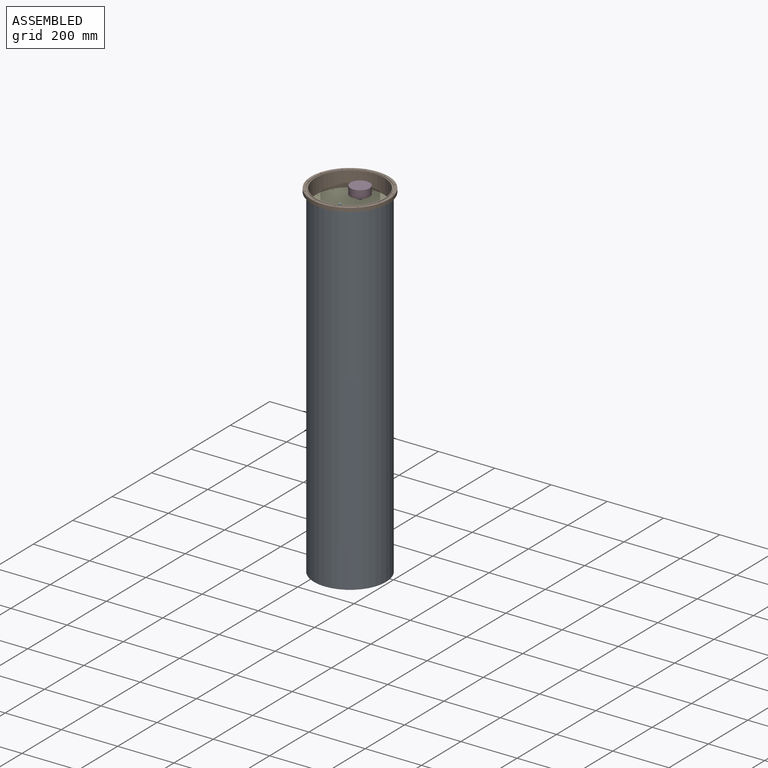
[diagram: assembled view]
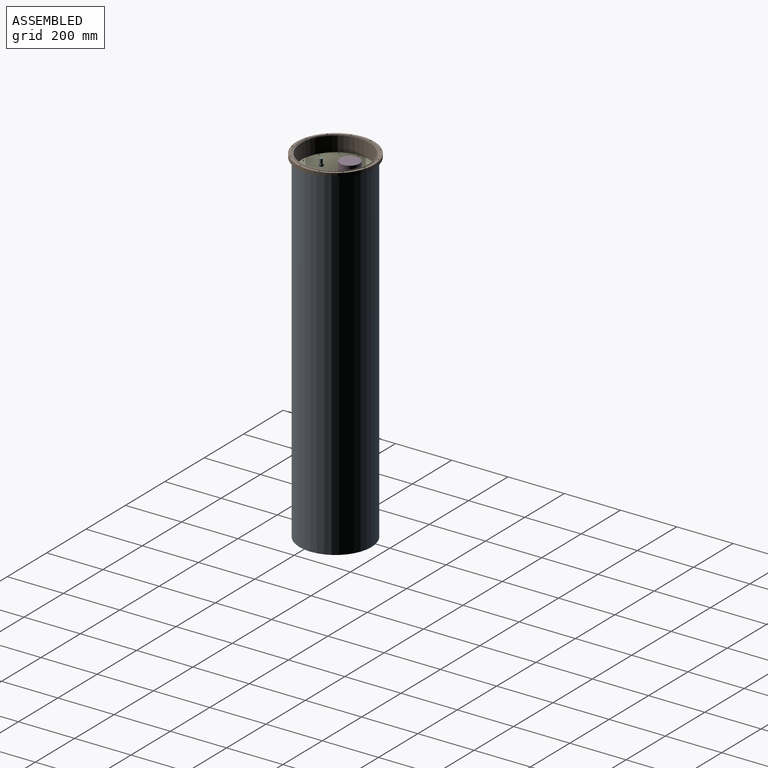
[diagram: assembled view, second angle]
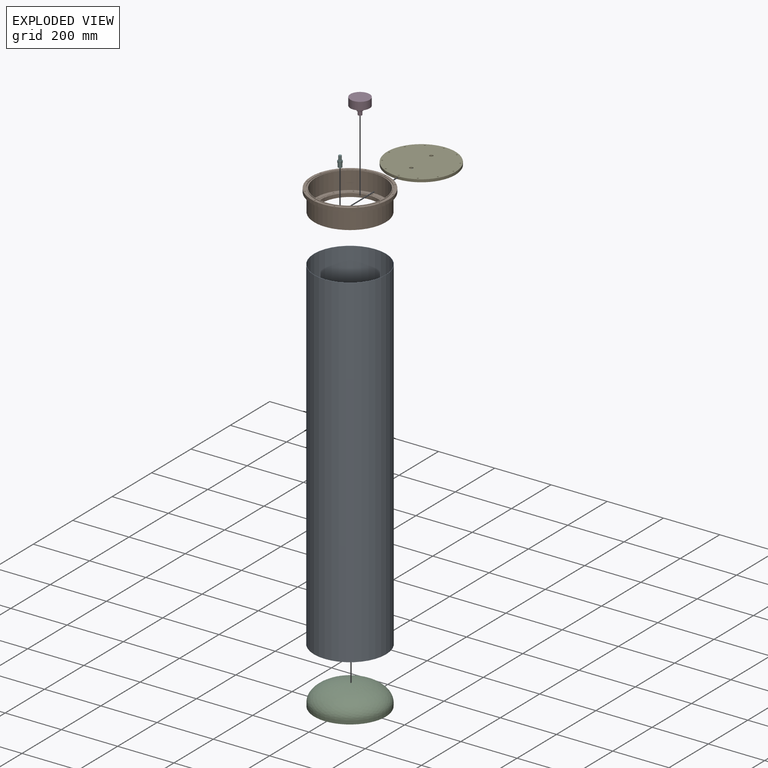
[diagram: exploded view]
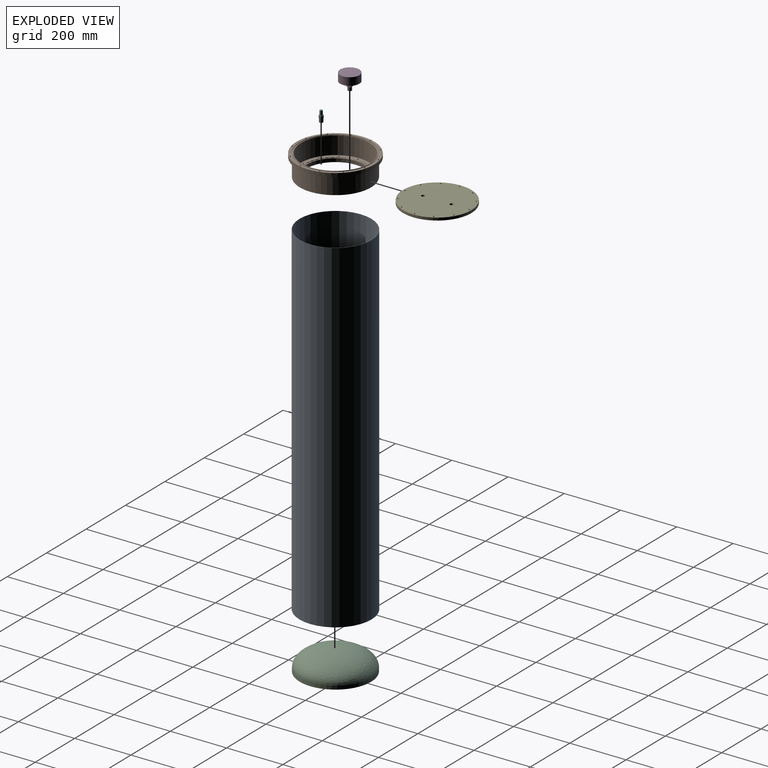
[diagram: exploded view, second angle]
ASSEMBLY  parts=6 mates=5
PART A: 4 faces, bbox 256x256x1219.2 mm
  f0: cylinder r=127mm len=1219.2mm, axis (0,0,-1), area 972878.4mm2, adj f2,f3
  f1: cylinder r=127.99mm len=1219.2mm, axis (0,0,-1), area 980466.8mm2, adj f2,f3
  f2: plane 255.98x255.98mm, normal (0,0,1), area 793.5mm2, adj f0,f1
  f3: plane 255.98x255.98mm, normal (0,0,-1), area 793.5mm2, adj f0,f1
PART B: 54 faces, bbox 276.2x276.2x76.2 mm
  f0: plane 217.17x217.17mm, normal (0,0,1), area 546mm2, adj f1,f17
  f1: torus R=106.68mm, axis (0,0,-1), area 5053.6mm2, adj f0,f2
  f2: plane 211.16x211.16mm, normal (0,0,1), area 530.9mm2, adj f1,f3
  f3: cylinder r=104.77mm len=209.55mm, axis (0,0,-1), area 1504.9mm2, adj f2,f4
  f4: plane 209.55x209.55mm, normal (0,0,1), area 2058.5mm2, adj f3,f5
  f5: cylinder r=101.6mm len=203.2mm, axis (0,0,-1), area 8107.3mm2, adj f4,f6
  f6: plane 254x254mm, normal (0,0,-1), area 18241.5mm2, adj f5,f7
  f7: cylinder r=127mm len=254mm, axis (0,0,-1), area 50670.7mm2, adj f6,f8
  f8: plane 276.23x276.23mm, normal (0,0,-1), area 9041.6mm2, adj f7,f9,f42,f43,f44,f45,f46,f47
  f9: cylinder r=138.11mm len=276.23mm, axis (0,0,-1), area 11020.9mm2, adj f8,f10
  f10: plane 276.23x276.23mm, normal (0,0,1), area 7971.9mm2, adj f9,f11,f42,f43,f44,f45,f46,f47
  f11: cylinder r=128.33mm len=256.67mm, axis (0,0,-1), area 1843.3mm2, adj f10,f12
  f12: plane 256.67x256.67mm, normal (0,0,1), area 3026.6mm2, adj f11,f13
  f13: cylinder r=124.52mm len=249.05mm, axis (0,0,-1), area 1788.6mm2, adj f12,f14
  f14: plane 249.05x249.05mm, normal (0,0,1), area 1772.2mm2, adj f13,f15
  f15: cylinder r=122.24mm len=244.48mm, axis (0,0,-1), area 48770.6mm2, adj f14,f16
  f16: plane 244.48x244.48mm, normal (0,0,1), area 9697mm2, adj f15,f17,f18,f20,f22,f24,f26,f28
  f17: cylinder r=108.59mm len=217.17mm, axis (0,0,-1), area 1559.6mm2, adj f0,f16
  f18: cylinder r=2.32mm len=9.53mm, axis (0,0,1), area 138.9mm2, adj f16,f19
  f19: plane 4.64x4.64mm, normal (0,0,1), area 16.9mm2, adj f18
  f20: cylinder r=2.32mm len=9.53mm, axis (0,0,1), area 138.9mm2, adj f16,f21
  f21: plane 4.64x4.64mm, normal (0,0,1), area 16.9mm2, adj f20
  f22: cylinder r=2.32mm len=9.53mm, axis (0,0,1), area 138.9mm2, adj f16,f23
  f23: plane 4.64x4.64mm, normal (0,0,1), area 16.9mm2, adj f22
  f24: cylinder r=2.32mm len=9.53mm, axis (0,0,1), area 138.9mm2, adj f16,f25
  f25: plane 4.64x4.64mm, normal (0,0,1), area 16.9mm2, adj f24
  f26: cylinder r=2.32mm len=9.53mm, axis (0,0,1), area 138.9mm2, adj f16,f27
  f27: plane 4.64x4.64mm, normal (0,0,1), area 16.9mm2, adj f26
  f28: cylinder r=2.32mm len=9.53mm, axis (0,0,1), area 138.9mm2, adj f16,f29
  f29: plane 4.64x4.64mm, normal (0,0,1), area 16.9mm2, adj f28
  f30: cylinder r=2.32mm len=9.53mm, axis (0,0,1), area 138.9mm2, adj f16,f31
  f31: plane 4.64x4.64mm, normal (0,0,1), area 16.9mm2, adj f30
  f32: cylinder r=2.32mm len=9.53mm, axis (0,0,1), area 138.9mm2, adj f16,f33
  f33: plane 4.64x4.64mm, normal (0,0,1), area 16.9mm2, adj f32
  f34: cylinder r=2.32mm len=9.53mm, axis (0,0,1), area 138.9mm2, adj f16,f35
  f35: plane 4.64x4.64mm, normal (0,0,1), area 16.9mm2, adj f34
  f36: cylinder r=2.32mm len=9.53mm, axis (0,0,1), area 138.9mm2, adj f16,f37
  f37: plane 4.64x4.64mm, normal (0,0,1), area 16.9mm2, adj f36
  f38: cylinder r=2.32mm len=9.53mm, axis (0,0,1), area 138.9mm2, adj f16,f39
  f39: plane 4.64x4.64mm, normal (0,0,1), area 16.9mm2, adj f38
  f40: cylinder r=2.32mm len=9.53mm, axis (0,0,1), area 138.9mm2, adj f16,f41
  f41: plane 4.64x4.64mm, normal (0,0,1), area 16.9mm2, adj f40
  f42: cylinder r=2.38mm len=12.7mm, axis (0,0,1), area 190mm2, adj f8,f10
  f43: cylinder r=2.38mm len=12.7mm, axis (0,0,1), area 190mm2, adj f8,f10
  f44: cylinder r=2.38mm len=12.7mm, axis (0,0,1), area 190mm2, adj f8,f10
  f45: cylinder r=2.38mm len=12.7mm, axis (0,0,1), area 190mm2, adj f8,f10
  f46: cylinder r=2.38mm len=12.7mm, axis (0,0,1), area 190mm2, adj f8,f10
  f47: cylinder r=2.38mm len=12.7mm, axis (0,0,1), area 190mm2, adj f8,f10
  f48: cylinder r=2.38mm len=12.7mm, axis (0,0,1), area 190mm2, adj f8,f10
  f49: cylinder r=2.38mm len=12.7mm, axis (0,0,1), area 190mm2, adj f8,f10
  f50: cylinder r=2.38mm len=12.7mm, axis (0,0,1), area 190mm2, adj f8,f10
  f51: cylinder r=2.38mm len=12.7mm, axis (0,0,1), area 190mm2, adj f8,f10
  f52: cylinder r=2.38mm len=12.7mm, axis (0,0,1), area 190mm2, adj f8,f10
  f53: cylinder r=2.38mm len=12.7mm, axis (0,0,1), area 190mm2, adj f8,f10
PART C: 5 faces, bbox 254x254x74.2 mm
  f0: cylinder r=124.97mm len=249.94mm, axis (0,0,1), area 9972mm2, adj f1,f4
  f1: plane 254x254mm, normal (0,0,-1), area 1608.5mm2, adj f0,f2
  f2: cylinder r=127mm len=254mm, axis (0,0,1), area 10134.1mm2, adj f1,f3
  f3: revolved ~254x127mm, area 0mm2, adj f2
  f4: revolved ~249.94x249.94mm, area 67189.9mm2, adj f0
PART D: 10 faces, bbox 68.6x68.6x57.5 mm
  f0: cylinder r=6.86mm len=13.72mm, axis (0,0,-1), area 547.2mm2, adj f1,f6
  f1: plane 13.72x13.72mm, normal (0,0,-1), area 147.8mm2, adj f0
  f2: plane 17.15x14mm, normal (1,0,0), area 240mm2, adj f3,f5,f6,f9
  f3: plane 17.15x14mm, normal (0,1,0), area 240mm2, adj f2,f4,f6,f9
  f4: plane 17.15x14mm, normal (-1,0,0), area 240mm2, adj f3,f5,f6,f9
  f5: plane 17.15x14mm, normal (0,-1,0), area 240mm2, adj f2,f4,f6,f9
  f6: plane 14x14mm, normal (0,0,-1), area 48.1mm2, adj f0,f2,f3,f4,f5
  f7: cylinder r=34.29mm len=68.58mm, axis (0,0,-1), area 5959.5mm2, adj f8,f9
  f8: plane 68.58x68.58mm, normal (0,0,1), area 3693.9mm2, adj f7
  f9: plane 68.58x68.58mm, normal (0,0,-1), area 3498mm2, adj f2,f3,f4,f5,f7
PART E: 17 faces, bbox 242.9x242.9x9.5 mm
  f0: cylinder r=121.44mm len=242.89mm, axis (0,0,-1), area 7268.1mm2, adj f1,f2
  f1: plane 242.89x242.89mm, normal (0,0,1), area 45837.5mm2, adj f0,f3,f4,f5,f6,f7,f8,f9
  f2: plane 242.89x242.89mm, normal (0,0,-1), area 45837.5mm2, adj f0,f3,f4,f5,f6,f7,f8,f9
  f3: cylinder r=2.54mm len=9.53mm, axis (0,0,1), area 152mm2, adj f1,f2
  f4: cylinder r=2.54mm len=9.53mm, axis (0,0,1), area 152mm2, adj f1,f2
  f5: cylinder r=2.54mm len=9.53mm, axis (0,0,1), area 152mm2, adj f1,f2
  f6: cylinder r=2.54mm len=9.53mm, axis (0,0,1), area 152mm2, adj f1,f2
  f7: cylinder r=2.54mm len=9.53mm, axis (0,0,1), area 152mm2, adj f1,f2
  f8: cylinder r=2.54mm len=9.53mm, axis (0,0,1), area 152mm2, adj f1,f2
  f9: cylinder r=2.54mm len=9.53mm, axis (0,0,1), area 152mm2, adj f1,f2
  f10: cylinder r=2.54mm len=9.53mm, axis (0,0,1), area 152mm2, adj f1,f2
  f11: cylinder r=2.54mm len=9.53mm, axis (0,0,1), area 152mm2, adj f1,f2
  f12: cylinder r=2.54mm len=9.53mm, axis (0,0,1), area 152mm2, adj f1,f2
  f13: cylinder r=2.54mm len=9.53mm, axis (0,0,1), area 152mm2, adj f1,f2
  f14: cylinder r=2.54mm len=9.53mm, axis (0,0,1), area 152mm2, adj f1,f2
  f15: cylinder r=6.35mm len=12.7mm, axis (0,0,1), area 380mm2, adj f1,f2
  f16: cylinder r=6.35mm len=12.7mm, axis (0,0,1), area 380mm2, adj f1,f2
PART F: 12 faces, bbox 14.1x16.3x38.1 mm
  f0: plane 16.26x14.08mm, normal (0,0,-1), area 23.9mm2, adj f2,f6,f7,f8,f9,f10,f11
  f1: plane 13.72x13.72mm, normal (0,0,-1), area 147.8mm2, adj f2
  f2: cylinder r=6.86mm len=14.22mm, axis (0,0,1), area 612.9mm2, adj f0,f1
  f3: plane 16.26x14.08mm, normal (0,0,1), area 90.6mm2, adj f4,f6,f7,f8,f9,f10,f11
  f4: cylinder r=5.08mm len=15.95mm, axis (0,0,1), area 509.1mm2, adj f3,f5
  f5: plane 10.16x10.16mm, normal (0,0,1), area 81.1mm2, adj f4
  f6: plane 7.92x7.04mm, normal (-0.5,0.87,0), area 64.4mm2, adj f0,f3,f9,f11
  f7: plane 8.13x7.92mm, normal (1,0,0), area 64.4mm2, adj f0,f3,f9,f10
  f8: plane 7.92x7.04mm, normal (-0.5,-0.87,0), area 64.4mm2, adj f0,f3,f10,f11
  f9: plane 7.92x7.04mm, normal (0.5,0.87,0), area 64.4mm2, adj f0,f3,f6,f7
  f10: plane 7.92x7.04mm, normal (0.5,-0.87,0), area 64.4mm2, adj f0,f3,f7,f8
  f11: plane 8.13x7.92mm, normal (-1,0,0), area 64.4mm2, adj f0,f3,f6,f8
PLACE A t=(-580.49,180.74,-419.97)mm
PLACE B t=(-580.49,180.74,735.73)mm
PLACE C t=(-580.49,180.74,-400.92)mm
PLACE D t=(-580.49,231.54,743.35)mm
PLACE E t=(-580.49,180.74,748.43)mm
PLACE F t=(-580.49,129.94,743.35)mm
MATE fastened E.f0 <-> B.f1  axis (0,0,-1) through (-580.49,180.74,748.43)mm
MATE fastened E.f15 <-> D.f0  axis (0,0,-1) through (-580.49,231.54,748.43)mm
MATE fastened B.f1 <-> A.f0  axis (0,0,-1) through (-580.49,180.74,799.23)mm
MATE fastened F.f2 <-> E.f16  axis (0,0,-1) through (-580.49,129.94,743.35)mm
MATE fastened C.f0 <-> A.f1  axis (0,0,-1) through (-580.49,180.74,-413.62)mm
